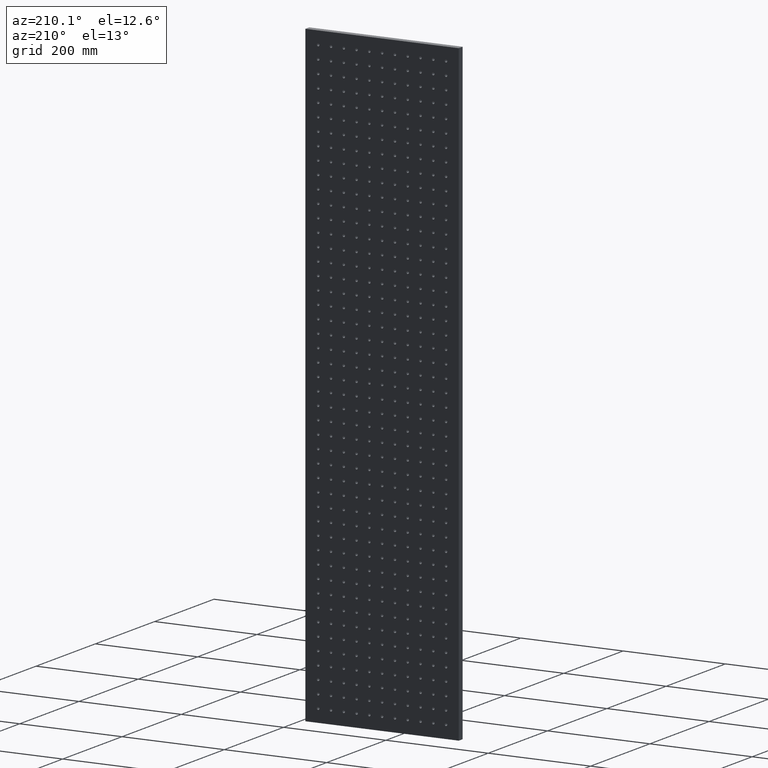
[diagram: clean part render]
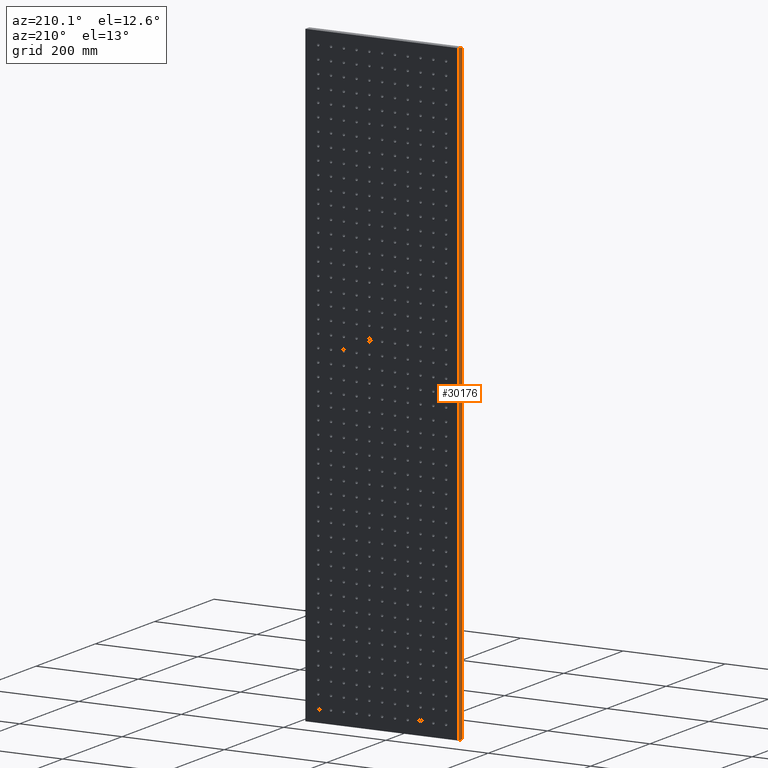
[diagram: same view with one face highlighted and labeled with its STEP entity id]
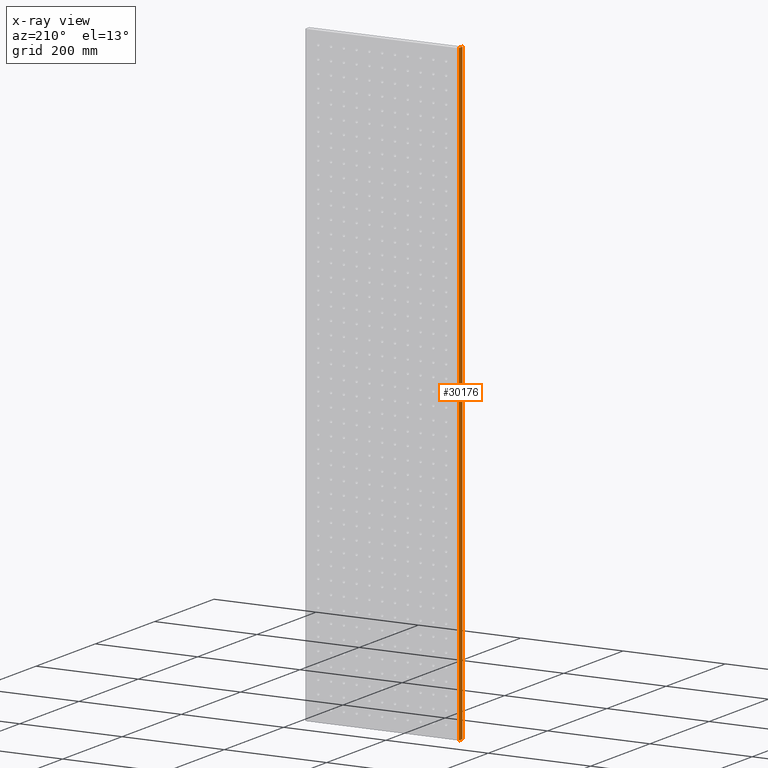
[diagram: x-ray of the same camera — body ghosted, the highlighted face saturated]
A machine part, auxiliary view. The second image highlights one B-rep face of the part: STEP entity #30176.
The next image is the same camera in x-ray: the body ghosted, the highlighted face saturated — about 0% of this face is hidden behind the body in this view.
In plain terms, the highlighted planar face has unit normal (1, 0, -0).
Its self-contained STEP definition (entity closure, byte-faithful):
#470 = CARTESIAN_POINT ( 'NONE',  ( -150.0000000000001421, 13.00000000000000000, -600.0000000000001137 ) ) ;
#1436 = CARTESIAN_POINT ( 'NONE',  ( -150.0000000000001421, 13.00000000000000000, -600.0000000000001137 ) ) ;
#1560 = VERTEX_POINT ( 'NONE', #36658 ) ;
#1633 = CARTESIAN_POINT ( 'NONE',  ( -150.0000000000000000, 13.00000000000000000, 599.9999999999998863 ) ) ;
#2621 = EDGE_CURVE ( 'NONE', #15980, #1560, #13427, .T. ) ;
#5435 = LINE ( 'NONE', #11491, #9621 ) ;
#5885 = CARTESIAN_POINT ( 'NONE',  ( -150.0000000000001421, 0.000000000000000000, -600.0000000000001137 ) ) ;
#7092 = FACE_OUTER_BOUND ( 'NONE', #38452, .T. ) ;
#7644 = VERTEX_POINT ( 'NONE', #470 ) ;
#8091 = VERTEX_POINT ( 'NONE', #5885 ) ;
#8182 = VECTOR ( 'NONE', #13625, 1000.000000000000000 ) ;
#9621 = VECTOR ( 'NONE', #20071, 1000.000000000000000 ) ;
#11491 = CARTESIAN_POINT ( 'NONE',  ( -150.0000000000001421, 13.00000000000000000, -600.0000000000001137 ) ) ;
#13427 = LINE ( 'NONE', #22778, #8182 ) ;
#13625 = DIRECTION ( 'NONE',  ( -0.000000000000000000, -1.000000000000000000, -0.000000000000000000 ) ) ;
#15980 = VERTEX_POINT ( 'NONE', #1633 ) ;
#18762 = PLANE ( 'NONE',  #27983 ) ;
#19623 = LINE ( 'NONE', #38069, #27669 ) ;
#20071 = DIRECTION ( 'NONE',  ( -0.000000000000000000, -1.000000000000000000, -0.000000000000000000 ) ) ;
#20416 = ORIENTED_EDGE ( 'NONE', *, *, #37729, .F. ) ;
#21301 = DIRECTION ( 'NONE',  ( -1.156482317317871725E-16, 0.000000000000000000, -1.000000000000000000 ) ) ;
#21372 = ORIENTED_EDGE ( 'NONE', *, *, #27884, .T. ) ;
#22778 = CARTESIAN_POINT ( 'NONE',  ( -150.0000000000000000, 13.00000000000000000, 599.9999999999998863 ) ) ;
#23284 = LINE ( 'NONE', #32198, #29631 ) ;
#24983 = DIRECTION ( 'NONE',  ( 1.000000000000000000, 0.000000000000000000, -1.156482317317871725E-16 ) ) ;
#27669 = VECTOR ( 'NONE', #32227, 1000.000000000000000 ) ;
#27884 = EDGE_CURVE ( 'NONE', #8091, #1560, #23284, .T. ) ;
#27983 = AXIS2_PLACEMENT_3D ( 'NONE', #1436, #24983, #21301 ) ;
#29631 = VECTOR ( 'NONE', #32031, 1000.000000000000000 ) ;
#30176 = ADVANCED_FACE ( 'NONE', ( #7092 ), #18762, .F. ) ;
#32031 = DIRECTION ( 'NONE',  ( 1.156482317317871478E-16, 0.000000000000000000, 1.000000000000000000 ) ) ;
#32198 = CARTESIAN_POINT ( 'NONE',  ( -150.0000000000001421, 0.000000000000000000, -600.0000000000001137 ) ) ;
#32227 = DIRECTION ( 'NONE',  ( 1.156482317317871478E-16, 0.000000000000000000, 1.000000000000000000 ) ) ;
#33336 = ORIENTED_EDGE ( 'NONE', *, *, #37302, .T. ) ;
#36658 = CARTESIAN_POINT ( 'NONE',  ( -150.0000000000000000, 0.000000000000000000, 599.9999999999998863 ) ) ;
#37302 = EDGE_CURVE ( 'NONE', #7644, #8091, #5435, .T. ) ;
#37527 = ORIENTED_EDGE ( 'NONE', *, *, #2621, .F. ) ;
#37729 = EDGE_CURVE ( 'NONE', #7644, #15980, #19623, .T. ) ;
#38069 = CARTESIAN_POINT ( 'NONE',  ( -150.0000000000001421, 13.00000000000000000, -600.0000000000001137 ) ) ;
#38452 = EDGE_LOOP ( 'NONE', ( #21372, #37527, #20416, #33336 ) ) ;